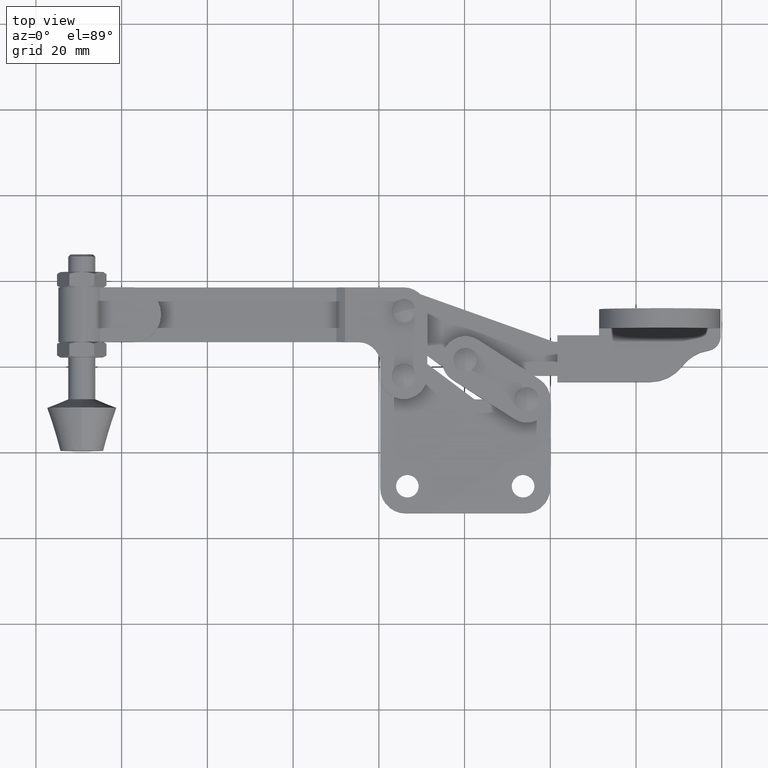
[diagram: clean part render]
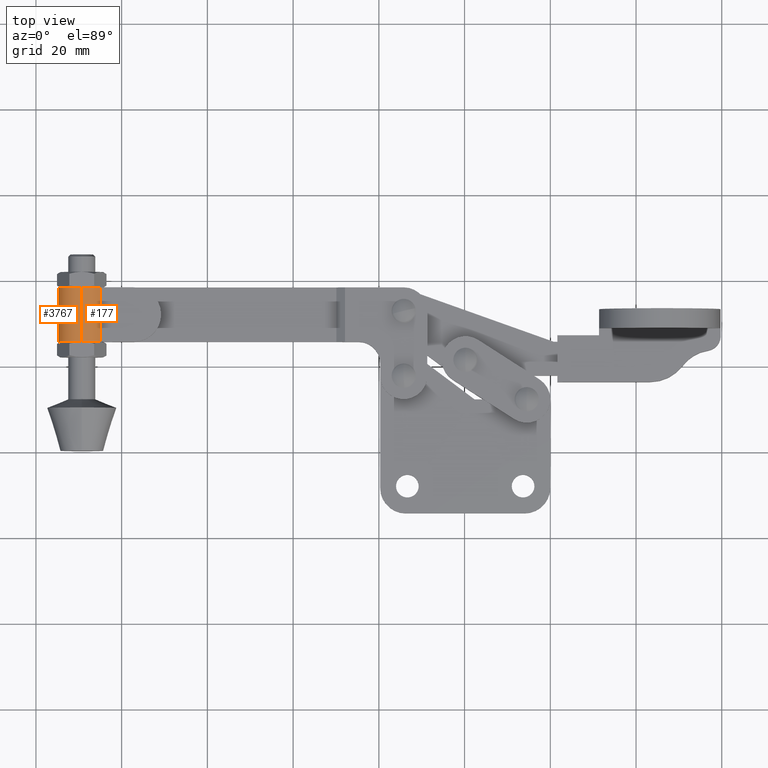
[diagram: same view with one multi-face feature highlighted, each face labeled with its STEP entity id]
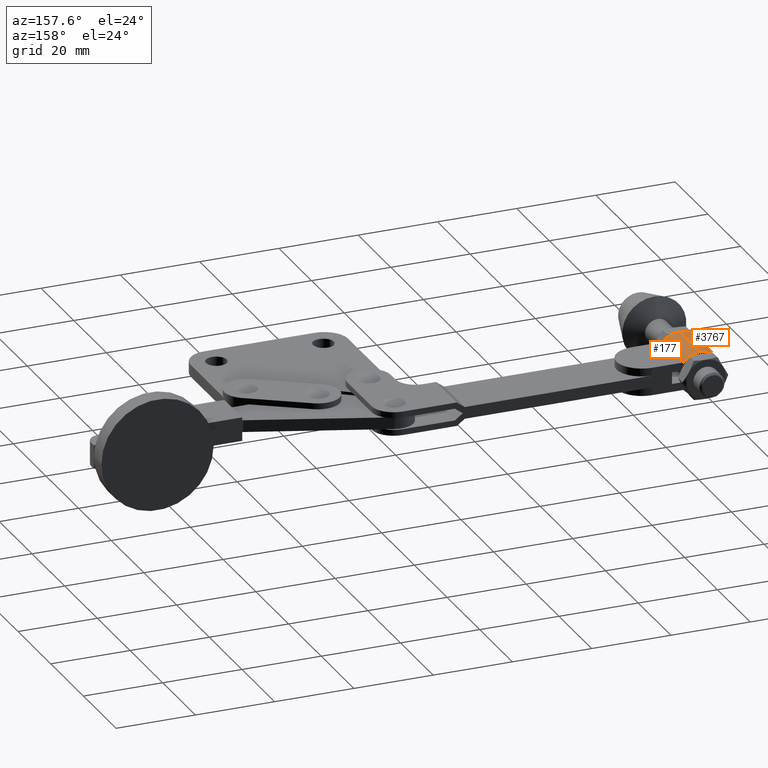
[diagram: same view with one multi-face feature highlighted, each face labeled with its STEP entity id]
A machine part, top view. The highlighted faces form ONE feature: a constant-radius fillet chain: 2 tangent blend faces with common blend radius 5.5 mm. The faces share edges in the B-rep.
A second angle (auxiliary view) of the same feature is appended — it is thin or edge-on in the first view.
Their STEP definitions:
[1] entity #177 (Cylinder):
#171 = EDGE_CURVE ( 'NONE', #4221, #7307, #6043, .T. ) ;
#177 = ADVANCED_FACE ( 'NONE', ( #6028 ), #7995, .T. ) ;
#280 = VERTEX_POINT ( 'NONE', #7244 ) ;
#758 = DIRECTION ( 'NONE',  ( 0.0000000000000000000, 0.0000000000000000000, -1.000000000000000000 ) ) ;
#785 = CIRCLE ( 'NONE', #4828, 5.499999999999995600 ) ;
#891 = DIRECTION ( 'NONE',  ( -1.302476995568923800E-007, 0.9999999999999915600, 9.695778398624885900E-017 ) ) ;
#909 = DIRECTION ( 'NONE',  ( 1.302476995568923600E-007, -0.9999999999999914500, -9.695778398624884700E-017 ) ) ;
#1348 = EDGE_CURVE ( 'NONE', #280, #7307, #785, .T. ) ;
#1594 = DIRECTION ( 'NONE',  ( 1.302476995568923800E-007, -0.9999999999999915600, -9.695778398624885900E-017 ) ) ;
#1755 = CARTESIAN_POINT ( 'NONE',  ( -107.9735045479253000, 38.09999039117079900, 5.499999999999923600 ) ) ;
#2619 = ORIENTED_EDGE ( 'NONE', *, *, #171, .F. ) ;
#2776 = VERTEX_POINT ( 'NONE', #1755 ) ;
#3165 = CARTESIAN_POINT ( 'NONE',  ( -107.9735053749981400, 38.09999039117069200, -1.365314318989198900E-014 ) ) ;
#3658 = DIRECTION ( 'NONE',  ( 0.9999999999999915600, 1.302476996206166000E-007, 0.0000000000000000000 ) ) ;
#3781 = LINE ( 'NONE', #7199, #5347 ) ;
#3902 = CARTESIAN_POINT ( 'NONE',  ( -103.7368530583285600, 38.09999094298491000, 3.507246376811579600 ) ) ;
#3973 = EDGE_CURVE ( 'NONE', #2776, #280, #3781, .T. ) ;
#4173 = AXIS2_PLACEMENT_3D ( 'NONE', #3165, #1594, #758 ) ;
#4221 = VERTEX_POINT ( 'NONE', #4731 ) ;
#4282 = ORIENTED_EDGE ( 'NONE', *, *, #3973, .T. ) ;
#4731 = CARTESIAN_POINT ( 'NONE',  ( -103.7368530583285600, 38.09999094298491000, 3.507246376811579600 ) ) ;
#4806 = ORIENTED_EDGE ( 'NONE', *, *, #6113, .F. ) ;
#4828 = AXIS2_PLACEMENT_3D ( 'NONE', #7795, #6094, #3658 ) ;
#4833 = CARTESIAN_POINT ( 'NONE',  ( -107.9735053749981400, 38.09999039117069200, -1.365314318989198900E-014 ) ) ;
#5005 = EDGE_LOOP ( 'NONE', ( #4806, #4282, #6970, #2619 ) ) ;
#5347 = VECTOR ( 'NONE', #909, 1000.000000000000100 ) ;
#5488 = CARTESIAN_POINT ( 'NONE',  ( -103.7368514041827900, 25.39999094298501700, 3.507246376811578700 ) ) ;
#5500 = DIRECTION ( 'NONE',  ( 0.9999999999999915600, 1.302476989898080600E-007, 0.0000000000000000000 ) ) ;
#6028 = FACE_OUTER_BOUND ( 'NONE', #5005, .T. ) ;
#6043 = LINE ( 'NONE', #3902, #6069 ) ;
#6069 = VECTOR ( 'NONE', #7626, 1000.000000000000100 ) ;
#6094 = DIRECTION ( 'NONE',  ( -1.302476995568923800E-007, 0.9999999999999915600, 9.695778398624885900E-017 ) ) ;
#6113 = EDGE_CURVE ( 'NONE', #2776, #4221, #7932, .T. ) ;
#6970 = ORIENTED_EDGE ( 'NONE', *, *, #1348, .T. ) ;
#7199 = CARTESIAN_POINT ( 'NONE',  ( -107.9735053749981400, 38.09999039117069200, 5.499999999999985800 ) ) ;
#7244 = CARTESIAN_POINT ( 'NONE',  ( -107.9735045479252200, 25.39999039117069300, 5.499999999999922700 ) ) ;
#7307 = VERTEX_POINT ( 'NONE', #5488 ) ;
#7626 = DIRECTION ( 'NONE',  ( 1.302476995568923600E-007, -0.9999999999999914500, -9.695778398624884700E-017 ) ) ;
#7795 = CARTESIAN_POINT ( 'NONE',  ( -107.9735037208523500, 25.39999039117080300, -1.488450704651734900E-014 ) ) ;
#7932 = CIRCLE ( 'NONE', #8343, 5.499999999999995600 ) ;
#7995 = CYLINDRICAL_SURFACE ( 'NONE', #4173, 5.500000000000000000 ) ;
#8343 = AXIS2_PLACEMENT_3D ( 'NONE', #4833, #891, #5500 ) ;
[2] entity #3767 (Cylinder):
#5 = CARTESIAN_POINT ( 'NONE',  ( -107.9735053749981400, 38.09999039117069200, -5.500000000000013300 ) ) ;
#135 = DIRECTION ( 'NONE',  ( -1.302476995568923800E-007, 0.9999999999999915600, 9.695778398624885900E-017 ) ) ;
#280 = VERTEX_POINT ( 'NONE', #7244 ) ;
#373 = ORIENTED_EDGE ( 'NONE', *, *, #3973, .F. ) ;
#398 = CARTESIAN_POINT ( 'NONE',  ( -107.9735045479252200, 25.39999039117069300, -5.499999999999952000 ) ) ;
#708 = EDGE_CURVE ( 'NONE', #1057, #280, #6273, .T. ) ;
#809 = CYLINDRICAL_SURFACE ( 'NONE', #6618, 5.500000000000000000 ) ;
#909 = DIRECTION ( 'NONE',  ( 1.302476995568923600E-007, -0.9999999999999914500, -9.695778398624884700E-017 ) ) ;
#1022 = VERTEX_POINT ( 'NONE', #2255 ) ;
#1026 = DIRECTION ( 'NONE',  ( 1.302476995568923800E-007, -0.9999999999999915600, -9.695778398624885900E-017 ) ) ;
#1057 = VERTEX_POINT ( 'NONE', #398 ) ;
#1141 = CARTESIAN_POINT ( 'NONE',  ( -107.9735053749981400, 38.09999039117069200, -1.365314318989198900E-014 ) ) ;
#1150 = AXIS2_PLACEMENT_3D ( 'NONE', #5760, #135, #8294 ) ;
#1667 = LINE ( 'NONE', #5, #6644 ) ;
#1755 = CARTESIAN_POINT ( 'NONE',  ( -107.9735045479253000, 38.09999039117079900, 5.499999999999923600 ) ) ;
#2255 = CARTESIAN_POINT ( 'NONE',  ( -107.9735045479253000, 38.09999039117080600, -5.499999999999951200 ) ) ;
#2527 = EDGE_LOOP ( 'NONE', ( #373, #5772, #3829, #6146 ) ) ;
#2776 = VERTEX_POINT ( 'NONE', #1755 ) ;
#3037 = EDGE_CURVE ( 'NONE', #1022, #2776, #5696, .T. ) ;
#3767 = ADVANCED_FACE ( 'NONE', ( #4939 ), #809, .T. ) ;
#3781 = LINE ( 'NONE', #7199, #5347 ) ;
#3829 = ORIENTED_EDGE ( 'NONE', *, *, #8088, .T. ) ;
#3973 = EDGE_CURVE ( 'NONE', #2776, #280, #3781, .T. ) ;
#4562 = DIRECTION ( 'NONE',  ( 1.302476995568923600E-007, -0.9999999999999914500, -9.695778398624884700E-017 ) ) ;
#4939 = FACE_OUTER_BOUND ( 'NONE', #2527, .T. ) ;
#5347 = VECTOR ( 'NONE', #909, 1000.000000000000100 ) ;
#5696 = CIRCLE ( 'NONE', #1150, 5.499999999999995600 ) ;
#5760 = CARTESIAN_POINT ( 'NONE',  ( -107.9735053749981400, 38.09999039117069200, -1.365314318989198900E-014 ) ) ;
#5772 = ORIENTED_EDGE ( 'NONE', *, *, #3037, .F. ) ;
#5930 = DIRECTION ( 'NONE',  ( 0.9999999999999915600, 1.302476996206166000E-007, 0.0000000000000000000 ) ) ;
#6146 = ORIENTED_EDGE ( 'NONE', *, *, #708, .T. ) ;
#6273 = CIRCLE ( 'NONE', #7744, 5.499999999999995600 ) ;
#6618 = AXIS2_PLACEMENT_3D ( 'NONE', #1141, #1026, #7994 ) ;
#6644 = VECTOR ( 'NONE', #4562, 1000.000000000000100 ) ;
#6886 = CARTESIAN_POINT ( 'NONE',  ( -107.9735037208523500, 25.39999039117080300, -1.488450704651734900E-014 ) ) ;
#6930 = DIRECTION ( 'NONE',  ( -1.302476995568923800E-007, 0.9999999999999915600, 9.695778398624885900E-017 ) ) ;
#7199 = CARTESIAN_POINT ( 'NONE',  ( -107.9735053749981400, 38.09999039117069200, 5.499999999999985800 ) ) ;
#7244 = CARTESIAN_POINT ( 'NONE',  ( -107.9735045479252200, 25.39999039117069300, 5.499999999999922700 ) ) ;
#7744 = AXIS2_PLACEMENT_3D ( 'NONE', #6886, #6930, #5930 ) ;
#7994 = DIRECTION ( 'NONE',  ( 0.0000000000000000000, 0.0000000000000000000, -1.000000000000000000 ) ) ;
#8088 = EDGE_CURVE ( 'NONE', #1022, #1057, #1667, .T. ) ;
#8294 = DIRECTION ( 'NONE',  ( 0.9999999999999915600, 1.302476989898080600E-007, 0.0000000000000000000 ) ) ;